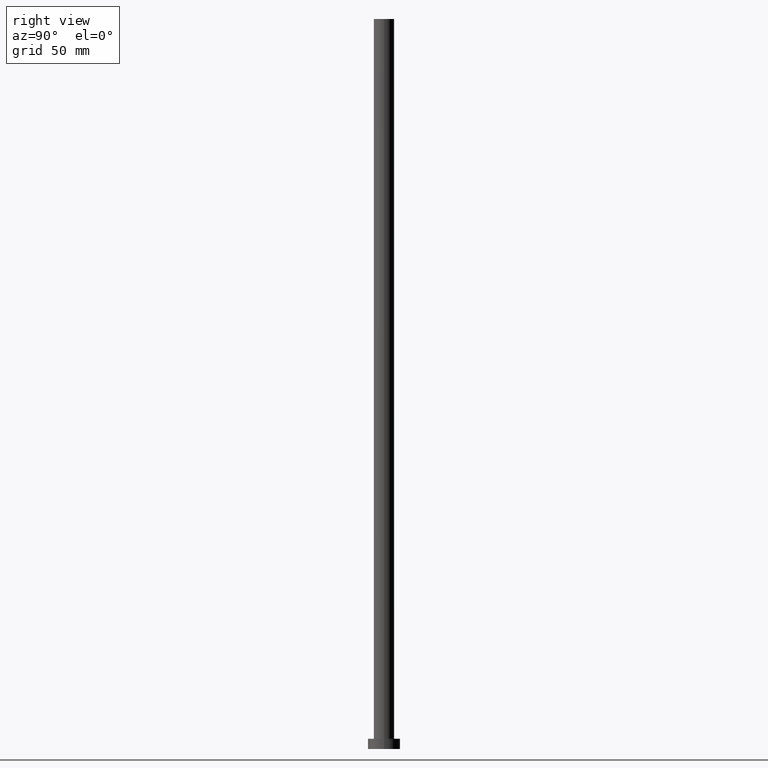
[diagram: clean part render]
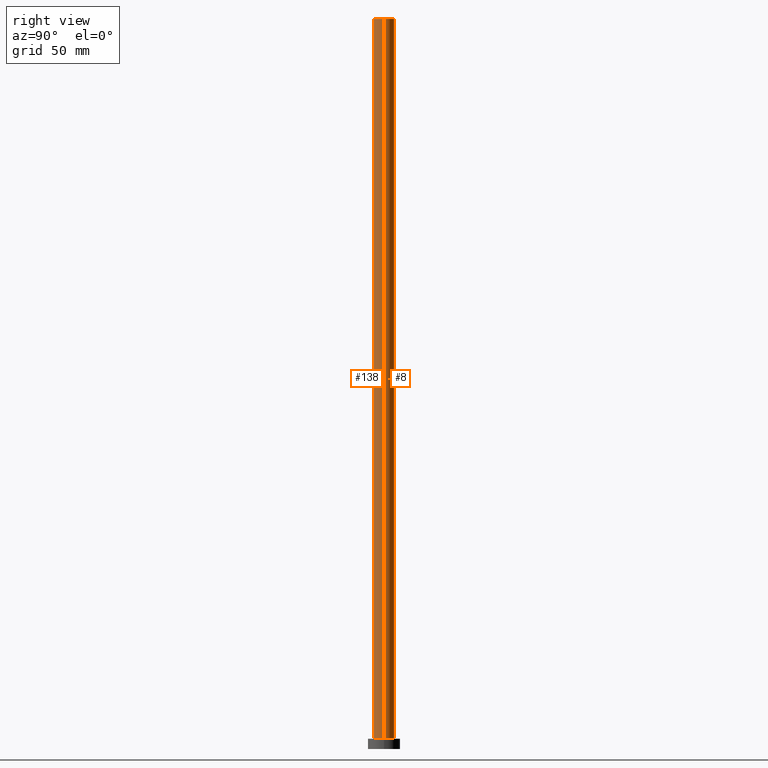
[diagram: same view with one multi-face feature highlighted, each face labeled with its STEP entity id]
A machine part, right view. The highlighted faces form ONE feature: a constant-radius fillet chain: 2 tangent blend faces with common blend radius 7 mm. The faces share edges in the B-rep.
Their STEP definitions:
[1] entity #138 (Cylinder):
#7 = DIRECTION ( 'NONE',  ( -0.000000000000000000, -0.000000000000000000, -1.000000000000000000 ) ) ;
#11 = VERTEX_POINT ( 'NONE', #83 ) ;
#16 = DIRECTION ( 'NONE',  ( -0.000000000000000000, -0.000000000000000000, -1.000000000000000000 ) ) ;
#18 = CARTESIAN_POINT ( 'NONE',  ( -7.000000000000000888, 0.000000000000000000, 500.0000000000000000 ) ) ;
#21 = DIRECTION ( 'NONE',  ( -1.000000000000000000, 0.000000000000000000, 0.000000000000000000 ) ) ;
#43 = ORIENTED_EDGE ( 'NONE', *, *, #91, .F. ) ;
#76 = DIRECTION ( 'NONE',  ( 0.000000000000000000, 0.000000000000000000, 1.000000000000000000 ) ) ;
#79 = CARTESIAN_POINT ( 'NONE',  ( 0.000000000000000000, 0.000000000000000000, 500.0000000000000000 ) ) ;
#80 = AXIS2_PLACEMENT_3D ( 'NONE', #79, #95, #21 ) ;
#81 = CYLINDRICAL_SURFACE ( 'NONE', #80, 7.000000000000000888 ) ;
#83 = CARTESIAN_POINT ( 'NONE',  ( 7.000000000000000888, 8.572527594031474176E-16, 7.000000000000000000 ) ) ;
#87 = AXIS2_PLACEMENT_3D ( 'NONE', #116, #200, #241 ) ;
#90 = VERTEX_POINT ( 'NONE', #126 ) ;
#91 = EDGE_CURVE ( 'NONE', #142, #11, #100, .T. ) ;
#95 = DIRECTION ( 'NONE',  ( -0.000000000000000000, -0.000000000000000000, -1.000000000000000000 ) ) ;
#96 = VECTOR ( 'NONE', #7, 1000.000000000000000 ) ;
#100 = LINE ( 'NONE', #174, #96 ) ;
#115 = DIRECTION ( 'NONE',  ( 1.000000000000000000, 0.000000000000000000, 0.000000000000000000 ) ) ;
#116 = CARTESIAN_POINT ( 'NONE',  ( 0.000000000000000000, 0.000000000000000000, 500.0000000000000000 ) ) ;
#126 = CARTESIAN_POINT ( 'NONE',  ( -7.000000000000000888, 0.000000000000000000, 7.000000000000000000 ) ) ;
#138 = ADVANCED_FACE ( 'NONE', ( #186 ), #81, .T. ) ;
#140 = ORIENTED_EDGE ( 'NONE', *, *, #205, .T. ) ;
#142 = VERTEX_POINT ( 'NONE', #170 ) ;
#149 = CARTESIAN_POINT ( 'NONE',  ( -7.000000000000000888, 0.000000000000000000, 500.0000000000000000 ) ) ;
#151 = CIRCLE ( 'NONE', #87, 7.000000000000000888 ) ;
#155 = EDGE_CURVE ( 'NONE', #90, #11, #245, .T. ) ;
#163 = EDGE_CURVE ( 'NONE', #252, #142, #151, .T. ) ;
#165 = LINE ( 'NONE', #18, #225 ) ;
#170 = CARTESIAN_POINT ( 'NONE',  ( 7.000000000000000888, 8.572527594031474176E-16, 500.0000000000000000 ) ) ;
#174 = CARTESIAN_POINT ( 'NONE',  ( 7.000000000000000888, 8.572527594031474176E-16, 500.0000000000000000 ) ) ;
#175 = EDGE_LOOP ( 'NONE', ( #43, #211, #140, #216 ) ) ;
#186 = FACE_OUTER_BOUND ( 'NONE', #175, .T. ) ;
#200 = DIRECTION ( 'NONE',  ( 0.000000000000000000, 0.000000000000000000, 1.000000000000000000 ) ) ;
#205 = EDGE_CURVE ( 'NONE', #252, #90, #165, .T. ) ;
#211 = ORIENTED_EDGE ( 'NONE', *, *, #163, .F. ) ;
#216 = ORIENTED_EDGE ( 'NONE', *, *, #155, .T. ) ;
#225 = VECTOR ( 'NONE', #16, 1000.000000000000000 ) ;
#226 = CARTESIAN_POINT ( 'NONE',  ( 0.000000000000000000, 0.000000000000000000, 7.000000000000000000 ) ) ;
#241 = DIRECTION ( 'NONE',  ( 1.000000000000000000, 0.000000000000000000, 0.000000000000000000 ) ) ;
#245 = CIRCLE ( 'NONE', #246, 7.000000000000000888 ) ;
#246 = AXIS2_PLACEMENT_3D ( 'NONE', #226, #76, #115 ) ;
#252 = VERTEX_POINT ( 'NONE', #149 ) ;
[2] entity #8 (Cylinder):
#7 = DIRECTION ( 'NONE',  ( -0.000000000000000000, -0.000000000000000000, -1.000000000000000000 ) ) ;
#8 = ADVANCED_FACE ( 'NONE', ( #188 ), #132, .T. ) ;
#11 = VERTEX_POINT ( 'NONE', #83 ) ;
#16 = DIRECTION ( 'NONE',  ( -0.000000000000000000, -0.000000000000000000, -1.000000000000000000 ) ) ;
#18 = CARTESIAN_POINT ( 'NONE',  ( -7.000000000000000888, 0.000000000000000000, 500.0000000000000000 ) ) ;
#24 = DIRECTION ( 'NONE',  ( -1.000000000000000000, 0.000000000000000000, 0.000000000000000000 ) ) ;
#45 = EDGE_LOOP ( 'NONE', ( #249, #64, #102, #119 ) ) ;
#64 = ORIENTED_EDGE ( 'NONE', *, *, #91, .T. ) ;
#65 = DIRECTION ( 'NONE',  ( 0.000000000000000000, 0.000000000000000000, 1.000000000000000000 ) ) ;
#71 = DIRECTION ( 'NONE',  ( 1.000000000000000000, 0.000000000000000000, 0.000000000000000000 ) ) ;
#77 = CARTESIAN_POINT ( 'NONE',  ( 0.000000000000000000, 0.000000000000000000, 500.0000000000000000 ) ) ;
#83 = CARTESIAN_POINT ( 'NONE',  ( 7.000000000000000888, 8.572527594031474176E-16, 7.000000000000000000 ) ) ;
#85 = AXIS2_PLACEMENT_3D ( 'NONE', #77, #228, #24 ) ;
#86 = CARTESIAN_POINT ( 'NONE',  ( 0.000000000000000000, 0.000000000000000000, 500.0000000000000000 ) ) ;
#90 = VERTEX_POINT ( 'NONE', #126 ) ;
#91 = EDGE_CURVE ( 'NONE', #142, #11, #100, .T. ) ;
#96 = VECTOR ( 'NONE', #7, 1000.000000000000000 ) ;
#100 = LINE ( 'NONE', #174, #96 ) ;
#102 = ORIENTED_EDGE ( 'NONE', *, *, #253, .T. ) ;
#109 = EDGE_CURVE ( 'NONE', #142, #252, #230, .T. ) ;
#119 = ORIENTED_EDGE ( 'NONE', *, *, #205, .F. ) ;
#126 = CARTESIAN_POINT ( 'NONE',  ( -7.000000000000000888, 0.000000000000000000, 7.000000000000000000 ) ) ;
#132 = CYLINDRICAL_SURFACE ( 'NONE', #85, 7.000000000000000888 ) ;
#136 = AXIS2_PLACEMENT_3D ( 'NONE', #223, #244, #71 ) ;
#142 = VERTEX_POINT ( 'NONE', #170 ) ;
#149 = CARTESIAN_POINT ( 'NONE',  ( -7.000000000000000888, 0.000000000000000000, 500.0000000000000000 ) ) ;
#165 = LINE ( 'NONE', #18, #225 ) ;
#170 = CARTESIAN_POINT ( 'NONE',  ( 7.000000000000000888, 8.572527594031474176E-16, 500.0000000000000000 ) ) ;
#174 = CARTESIAN_POINT ( 'NONE',  ( 7.000000000000000888, 8.572527594031474176E-16, 500.0000000000000000 ) ) ;
#188 = FACE_OUTER_BOUND ( 'NONE', #45, .T. ) ;
#193 = CIRCLE ( 'NONE', #136, 7.000000000000000888 ) ;
#196 = DIRECTION ( 'NONE',  ( 1.000000000000000000, 0.000000000000000000, 0.000000000000000000 ) ) ;
#205 = EDGE_CURVE ( 'NONE', #252, #90, #165, .T. ) ;
#223 = CARTESIAN_POINT ( 'NONE',  ( 0.000000000000000000, 0.000000000000000000, 7.000000000000000000 ) ) ;
#225 = VECTOR ( 'NONE', #16, 1000.000000000000000 ) ;
#228 = DIRECTION ( 'NONE',  ( -0.000000000000000000, -0.000000000000000000, -1.000000000000000000 ) ) ;
#230 = CIRCLE ( 'NONE', #250, 7.000000000000000888 ) ;
#244 = DIRECTION ( 'NONE',  ( 0.000000000000000000, 0.000000000000000000, 1.000000000000000000 ) ) ;
#249 = ORIENTED_EDGE ( 'NONE', *, *, #109, .F. ) ;
#250 = AXIS2_PLACEMENT_3D ( 'NONE', #86, #65, #196 ) ;
#252 = VERTEX_POINT ( 'NONE', #149 ) ;
#253 = EDGE_CURVE ( 'NONE', #11, #90, #193, .T. ) ;